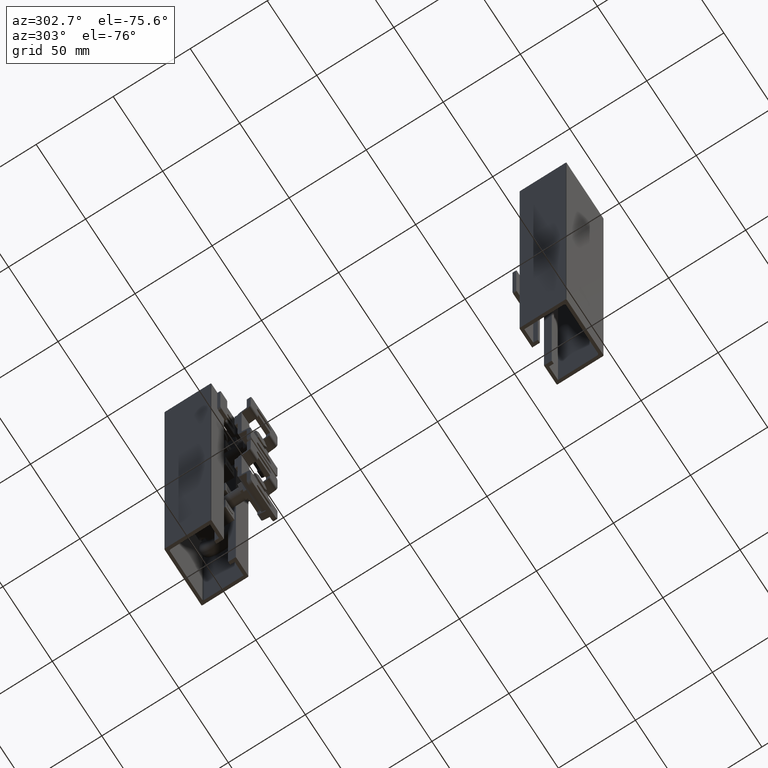
[diagram: clean part render]
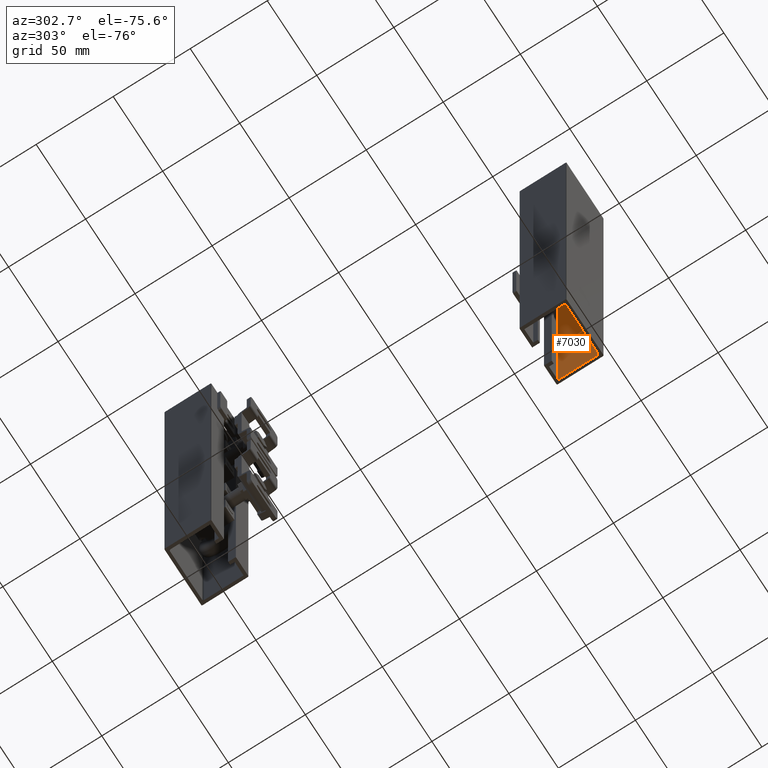
[diagram: same view with one face highlighted and labeled with its STEP entity id]
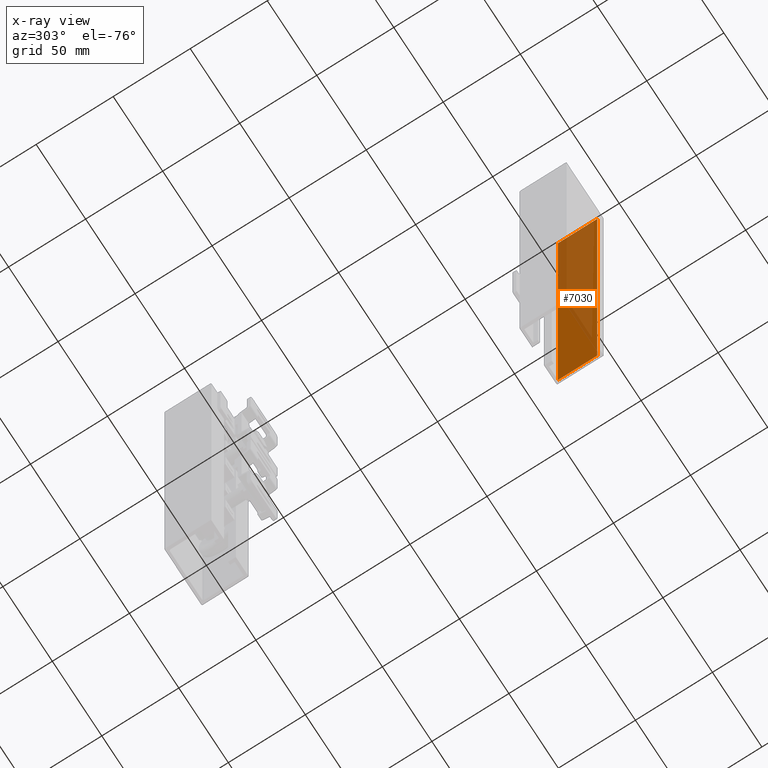
[diagram: x-ray of the same camera — body ghosted, the highlighted face saturated]
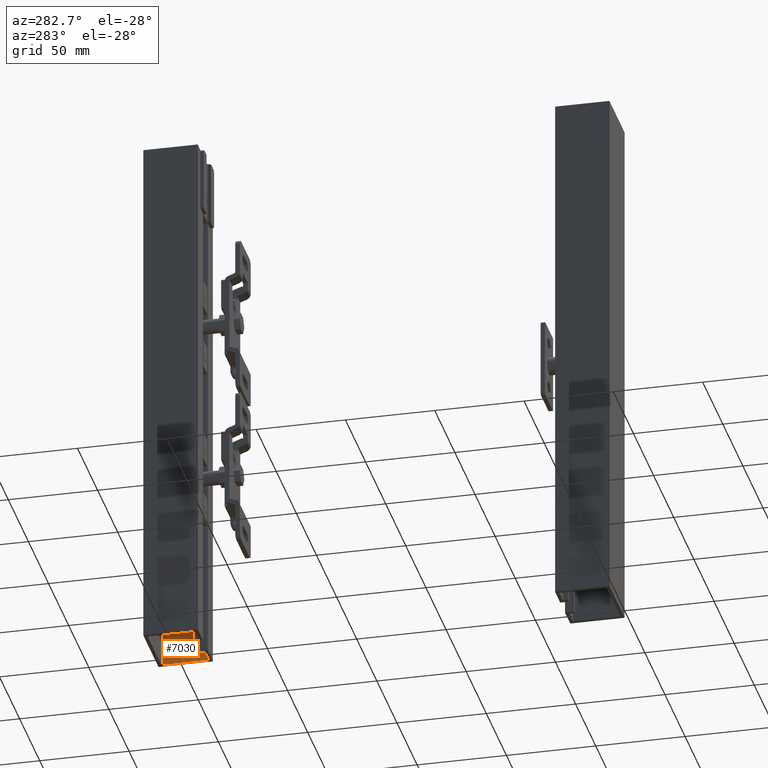
[diagram: same view with one face highlighted and labeled with its STEP entity id]
A machine part, auxiliary view. The second image highlights one B-rep face of the part: STEP entity #7030.
The next image is the same camera in x-ray: the body ghosted, the highlighted face saturated — about 64% of this face is hidden behind the body in this view.
A second angle (auxiliary view) of the same face is appended — the face is thin or edge-on in the first view.
In plain terms, the highlighted planar face has unit normal (1, 0, 0).
Its self-contained STEP definition (entity closure, byte-faithful):
#279=PLANE('',#7473);
#522=FACE_OUTER_BOUND('',#947,.T.);
#947=EDGE_LOOP('',(#4860,#4861,#4862,#4863));
#1504=LINE('',#10468,#2163);
#1506=LINE('',#10474,#2165);
#1507=LINE('',#10476,#2166);
#1508=LINE('',#10477,#2167);
#2163=VECTOR('',#8253,300.);
#2165=VECTOR('',#8259,25.5);
#2166=VECTOR('',#8260,300.);
#2167=VECTOR('',#8261,25.5);
#3141=VERTEX_POINT('',#10465);
#3142=VERTEX_POINT('',#10467);
#3144=VERTEX_POINT('',#10473);
#3145=VERTEX_POINT('',#10475);
#3847=EDGE_CURVE('',#3141,#3142,#1504,.T.);
#3850=EDGE_CURVE('',#3144,#3141,#1506,.T.);
#3851=EDGE_CURVE('',#3144,#3145,#1507,.F.);
#3852=EDGE_CURVE('',#3142,#3145,#1508,.T.);
#4860=ORIENTED_EDGE('',*,*,#3847,.F.);
#4861=ORIENTED_EDGE('',*,*,#3850,.F.);
#4862=ORIENTED_EDGE('',*,*,#3851,.T.);
#4863=ORIENTED_EDGE('',*,*,#3852,.F.);
#7030=ADVANCED_FACE('',(#522),#279,.F.);
#7473=AXIS2_PLACEMENT_3D('',#10472,#8257,#8258);
#8253=DIRECTION('',(0.,0.,1.));
#8257=DIRECTION('center_axis',(1.,0.,0.));
#8258=DIRECTION('ref_axis',(0.,1.,0.));
#8259=DIRECTION('',(0.,1.,0.));
#8260=DIRECTION('',(0.,0.,-1.));
#8261=DIRECTION('',(0.,-1.,0.));
#10465=CARTESIAN_POINT('',(17.,12.25,-150.));
#10467=CARTESIAN_POINT('',(17.,12.25,150.));
#10468=CARTESIAN_POINT('',(17.,12.25,0.));
#10472=CARTESIAN_POINT('Origin',(17.,-15.25,0.));
#10473=CARTESIAN_POINT('',(17.,-13.25,-150.));
#10474=CARTESIAN_POINT('',(17.,-7.85459183673469,-150.));
#10475=CARTESIAN_POINT('',(17.,-13.25,150.));
#10476=CARTESIAN_POINT('',(17.,-13.25,0.));
#10477=CARTESIAN_POINT('',(17.,-7.85459183673469,150.));